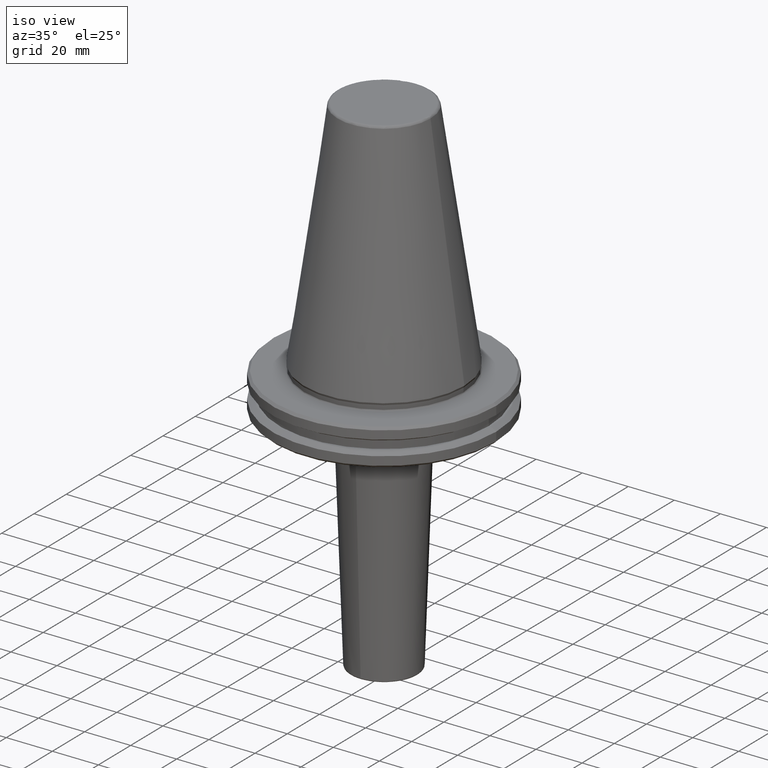
[diagram: clean part render]
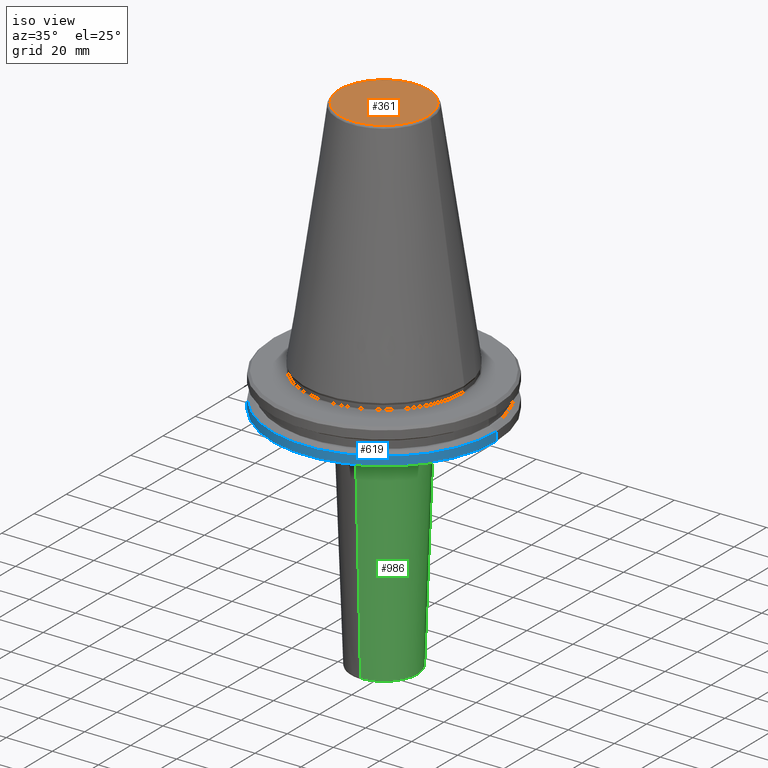
[diagram: same view with three faces highlighted in distinct colors, each labeled with its STEP entity id]
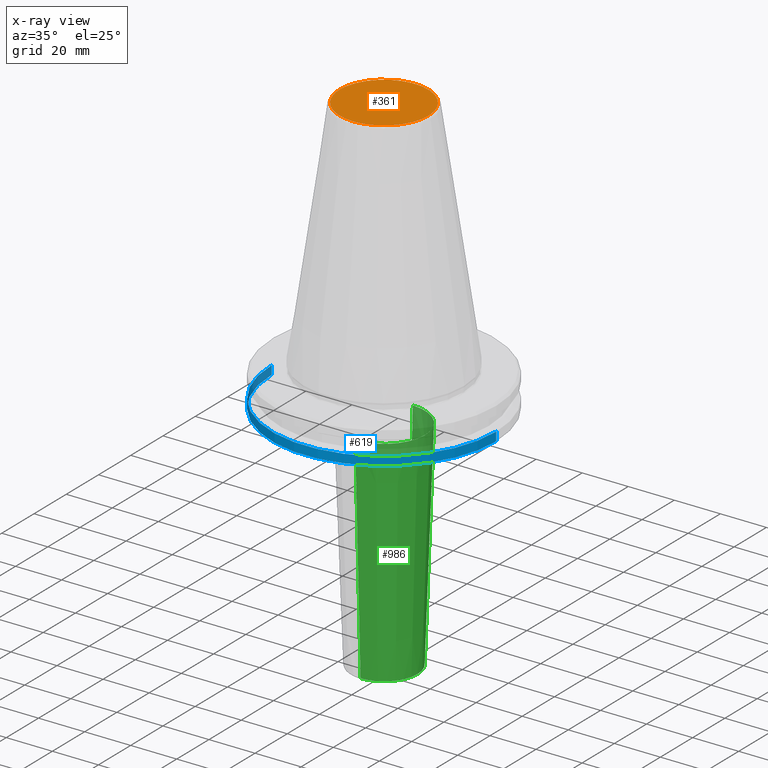
[diagram: x-ray of the same camera — body ghosted, the three highlighted faces saturated]
A machine part, iso view with three faces highlighted in distinct colors.
The next image is the same camera in x-ray (body ghosted, the three faces saturated) — at least one of them is partly hidden behind the body in this view.
Their STEP definitions:

[orange] entity #361 — the highlighted planar face has unit normal (0, 0, 1).
#27 = ORIENTED_EDGE ( 'NONE', *, *, #752, .F. ) ;
#204 = PLANE ( 'NONE',  #281 ) ;
#278 = VERTEX_POINT ( 'NONE', #1520 ) ;
#281 = AXIS2_PLACEMENT_3D ( 'NONE', #1187, #1137, #1091 ) ;
#361 = ADVANCED_FACE ( 'NONE', ( #865 ), #204, .T. ) ;
#393 = ORIENTED_EDGE ( 'NONE', *, *, #491, .F. ) ;
#415 = CARTESIAN_POINT ( 'NONE',  ( 19.22157500054540000, 0.0000000000000000000, 101.7499999999999900 ) ) ;
#420 = CARTESIAN_POINT ( 'NONE',  ( -19.22157500054540000, 2.378200593091452200E-015, 101.7499999999999900 ) ) ;
#423 = CARTESIAN_POINT ( 'NONE',  ( -19.22157500054540000, -38.44315000109079300, 101.7500000000000000 ) ) ;
#442 = CARTESIAN_POINT ( 'NONE',  ( 19.22157500054540000, 0.0000000000000000000, 101.7499999999999900 ) ) ;
#444 = CARTESIAN_POINT ( 'NONE',  ( 19.22157500054540000, -38.44315000109079300, 101.7500000000000000 ) ) ;
#491 = EDGE_CURVE ( 'NONE', #1270, #278, #967, .T. ) ;
#752 = EDGE_CURVE ( 'NONE', #278, #1270, #1209, .T. ) ;
#804 = CARTESIAN_POINT ( 'NONE',  ( 19.22157500054540000, 38.44315000109079300, 101.7500000000000000 ) ) ;
#852 = CARTESIAN_POINT ( 'NONE',  ( 19.22157500054540000, 0.0000000000000000000, 101.7499999999999900 ) ) ;
#865 = FACE_OUTER_BOUND ( 'NONE', #1147, .T. ) ;
#967 =( BOUNDED_CURVE ( )  B_SPLINE_CURVE ( 3, ( #442, #444, #423, #420 ),
 .UNSPECIFIED., .F., .F. ) 
 B_SPLINE_CURVE_WITH_KNOTS ( ( 4, 4 ),
 ( 0.0000000000000000000, 1.000000000000000000 ),
 .UNSPECIFIED. ) 
 CURVE ( )  GEOMETRIC_REPRESENTATION_ITEM ( )  RATIONAL_B_SPLINE_CURVE ( ( 1.000000000000000000, 0.3333333333333333700, 0.3333333333333333700, 1.000000000000000000 ) ) 
 REPRESENTATION_ITEM ( '' )  );
#1091 = DIRECTION ( 'NONE',  ( 1.000000000000000000, 0.0000000000000000000, -0.0000000000000000000 ) ) ;
#1093 = CARTESIAN_POINT ( 'NONE',  ( -19.22157500054539600, 38.44315000109079300, 101.7500000000000000 ) ) ;
#1137 = DIRECTION ( 'NONE',  ( 0.0000000000000000000, 0.0000000000000000000, 1.000000000000000000 ) ) ;
#1147 = EDGE_LOOP ( 'NONE', ( #27, #393 ) ) ;
#1187 = CARTESIAN_POINT ( 'NONE',  ( 0.0000000000000000000, 7.346249770921763000E-014, 101.7500000000000000 ) ) ;
#1209 =( BOUNDED_CURVE ( )  B_SPLINE_CURVE ( 3, ( #1323, #1093, #804, #852 ),
 .UNSPECIFIED., .F., .F. ) 
 B_SPLINE_CURVE_WITH_KNOTS ( ( 4, 4 ),
 ( 0.0000000000000000000, 1.000000000000000000 ),
 .UNSPECIFIED. ) 
 CURVE ( )  GEOMETRIC_REPRESENTATION_ITEM ( )  RATIONAL_B_SPLINE_CURVE ( ( 1.000000000000000000, 0.3333333333333333700, 0.3333333333333333700, 1.000000000000000000 ) ) 
 REPRESENTATION_ITEM ( '' )  );
#1270 = VERTEX_POINT ( 'NONE', #415 ) ;
#1323 = CARTESIAN_POINT ( 'NONE',  ( -19.22157500054540000, 2.378200593091452200E-015, 101.7499999999999900 ) ) ;
#1520 = CARTESIAN_POINT ( 'NONE',  ( -19.22157500054540000, 2.378200593091452200E-015, 101.7499999999999900 ) ) ;

[blue] entity #619 — the highlighted cylindrical surface (partial cylindrical patch) has radius 48.75 mm, axis along (0, 0, 1).
#14 = CARTESIAN_POINT ( 'NONE',  ( -48.75000000000040500, 5.970153145843396100E-015, -18.09999999999950400 ) ) ;
#52 = VERTEX_POINT ( 'NONE', #1083 ) ;
#54 = CARTESIAN_POINT ( 'NONE',  ( 48.75000000000040500, 0.0000000000000000000, -18.09999999999950400 ) ) ;
#85 = EDGE_CURVE ( 'NONE', #259, #239, #1263, .T. ) ;
#88 = CARTESIAN_POINT ( 'NONE',  ( 48.75000000000000000, 0.0000000000000000000, 113.5216080541959500 ) ) ;
#215 = EDGE_LOOP ( 'NONE', ( #900, #237, #869, #1043 ) ) ;
#237 = ORIENTED_EDGE ( 'NONE', *, *, #85, .T. ) ;
#239 = VERTEX_POINT ( 'NONE', #54 ) ;
#241 = CARTESIAN_POINT ( 'NONE',  ( 48.75000000000000700, 5.970153145843347900E-015, -14.34759526419166200 ) ) ;
#259 = VERTEX_POINT ( 'NONE', #14 ) ;
#263 = AXIS2_PLACEMENT_3D ( 'NONE', #1274, #1267, #1036 ) ;
#275 = DIRECTION ( 'NONE',  ( 1.000000000000000000, 0.0000000000000000000, 0.0000000000000000000 ) ) ;
#277 = CARTESIAN_POINT ( 'NONE',  ( 0.0000000000000000000, 0.0000000000000000000, 113.5216080541959500 ) ) ;
#287 = DIRECTION ( 'NONE',  ( 0.0000000000000000000, 0.0000000000000000000, 1.000000000000000000 ) ) ;
#371 = LINE ( 'NONE', #88, #1224 ) ;
#450 = DIRECTION ( 'NONE',  ( 0.0000000000000000000, 0.0000000000000000000, 1.000000000000000000 ) ) ;
#545 = DIRECTION ( 'NONE',  ( 1.000000000000000000, 0.0000000000000000000, 0.0000000000000000000 ) ) ;
#619 = ADVANCED_FACE ( 'NONE', ( #824 ), #1556, .T. ) ;
#659 = VERTEX_POINT ( 'NONE', #241 ) ;
#738 = DIRECTION ( 'NONE',  ( -0.0000000000000000000, -0.0000000000000000000, 1.000000000000000000 ) ) ;
#768 = EDGE_CURVE ( 'NONE', #52, #659, #1198, .T. ) ;
#824 = FACE_OUTER_BOUND ( 'NONE', #215, .T. ) ;
#837 = EDGE_CURVE ( 'NONE', #259, #52, #851, .T. ) ;
#851 = LINE ( 'NONE', #1382, #1449 ) ;
#869 = ORIENTED_EDGE ( 'NONE', *, *, #1103, .T. ) ;
#900 = ORIENTED_EDGE ( 'NONE', *, *, #837, .F. ) ;
#929 = DIRECTION ( 'NONE',  ( 0.0000000000000000000, 0.0000000000000000000, 1.000000000000000000 ) ) ;
#1036 = DIRECTION ( 'NONE',  ( -1.000000000000000000, 0.0000000000000000000, 0.0000000000000000000 ) ) ;
#1043 = ORIENTED_EDGE ( 'NONE', *, *, #768, .F. ) ;
#1083 = CARTESIAN_POINT ( 'NONE',  ( -48.75000000000000700, 0.0000000000000000000, -14.34759526419166200 ) ) ;
#1103 = EDGE_CURVE ( 'NONE', #239, #659, #371, .T. ) ;
#1188 = CARTESIAN_POINT ( 'NONE',  ( 0.0000000000000000000, 0.0000000000000000000, -18.09999999999950400 ) ) ;
#1198 = CIRCLE ( 'NONE', #263, 48.75000000000000000 ) ;
#1224 = VECTOR ( 'NONE', #450, 1000.000000000000000 ) ;
#1263 = CIRCLE ( 'NONE', #1456, 48.75000000000040500 ) ;
#1267 = DIRECTION ( 'NONE',  ( -0.0000000000000000000, -0.0000000000000000000, 1.000000000000000000 ) ) ;
#1274 = CARTESIAN_POINT ( 'NONE',  ( 0.0000000000000000000, 0.0000000000000000000, -14.34759526419166200 ) ) ;
#1288 = AXIS2_PLACEMENT_3D ( 'NONE', #277, #287, #275 ) ;
#1382 = CARTESIAN_POINT ( 'NONE',  ( -48.75000000000000000, 5.970153145843347100E-015, 113.5216080541959500 ) ) ;
#1449 = VECTOR ( 'NONE', #929, 1000.000000000000000 ) ;
#1456 = AXIS2_PLACEMENT_3D ( 'NONE', #1188, #738, #545 ) ;
#1556 = CYLINDRICAL_SURFACE ( 'NONE', #1288, 48.75000000000000000 ) ;

[green] entity #986 — the highlighted conical surface has half-angle 2.005 deg.
#8 = CARTESIAN_POINT ( 'NONE',  ( 14.51688787481192800, 1.777806026946944900E-015, -118.6174892910878400 ) ) ;
#46 = CIRCLE ( 'NONE', #1379, 14.51688787481192800 ) ;
#56 = CARTESIAN_POINT ( 'NONE',  ( 1.980744291789676800E-015, 14.51688787481192800, -118.6174892910878400 ) ) ;
#72 = CARTESIAN_POINT ( 'NONE',  ( 2.183682556632408800E-015, 17.83112125188073400, -23.92510708912191600 ) ) ;
#80 = CARTESIAN_POINT ( 'NONE',  ( 0.0000000000000000000, -17.83112125188073400, -23.92510708912191600 ) ) ;
#115 = AXIS2_PLACEMENT_3D ( 'NONE', #1286, #1374, #270 ) ;
#134 = VERTEX_POINT ( 'NONE', #80 ) ;
#175 = CONICAL_SURFACE ( 'NONE', #1315, 17.83112125188073400, 0.03498571882852573300 ) ;
#185 = LINE ( 'NONE', #1310, #671 ) ;
#186 = VERTEX_POINT ( 'NONE', #56 ) ;
#211 = ORIENTED_EDGE ( 'NONE', *, *, #1539, .T. ) ;
#219 = DIRECTION ( 'NONE',  ( 0.0000000000000000000, -9.728628118626234700E-017, 1.000000000000000000 ) ) ;
#257 = VECTOR ( 'NONE', #262, 1000.000000000000000 ) ;
#262 = DIRECTION ( 'NONE',  ( 0.0000000000000000000, -0.03497858217561870800, 0.9993880621605321100 ) ) ;
#270 = DIRECTION ( 'NONE',  ( -1.000000000000000000, 0.0000000000000000000, 0.0000000000000000000 ) ) ;
#298 = EDGE_CURVE ( 'NONE', #1367, #186, #406, .T. ) ;
#348 = CIRCLE ( 'NONE', #115, 17.83112125188073400 ) ;
#373 = CARTESIAN_POINT ( 'NONE',  ( 0.0000000000000000000, 0.0000000000000000000, -118.6174892910878400 ) ) ;
#376 = AXIS2_PLACEMENT_3D ( 'NONE', #373, #745, #1419 ) ;
#406 = CIRCLE ( 'NONE', #376, 14.51688787481192800 ) ;
#437 = EDGE_CURVE ( 'NONE', #1063, #1367, #46, .T. ) ;
#493 = CARTESIAN_POINT ( 'NONE',  ( 0.0000000000000000000, -14.51688787481193000, -118.6174892910878400 ) ) ;
#500 = DIRECTION ( 'NONE',  ( 1.000000000000000000, 0.0000000000000000000, -9.559754079173975900E-016 ) ) ;
#507 = DIRECTION ( 'NONE',  ( 0.0000000000000000000, 0.0000000000000000000, 1.000000000000000000 ) ) ;
#527 = CARTESIAN_POINT ( 'NONE',  ( 0.0000000000000000000, 0.0000000000000000000, -118.6174892910878400 ) ) ;
#564 = DIRECTION ( 'NONE',  ( 4.283640870008398600E-018, 0.03497858217561850700, 0.9993880621605322200 ) ) ;
#570 = DIRECTION ( 'NONE',  ( -1.000000000000000000, 0.0000000000000000000, 0.0000000000000000000 ) ) ;
#581 = DIRECTION ( 'NONE',  ( 0.0000000000000000000, 0.0000000000000000000, -1.000000000000000000 ) ) ;
#646 = CARTESIAN_POINT ( 'NONE',  ( 0.0000000000000000000, 0.0000000000000000000, -23.92510708912191600 ) ) ;
#671 = VECTOR ( 'NONE', #564, 999.9999999999998900 ) ;
#694 = ORIENTED_EDGE ( 'NONE', *, *, #990, .F. ) ;
#716 = DIRECTION ( 'NONE',  ( 0.0000000000000000000, -1.000000000000000000, -1.945725623725246700E-016 ) ) ;
#745 = DIRECTION ( 'NONE',  ( 0.0000000000000000000, 0.0000000000000000000, 1.000000000000000000 ) ) ;
#777 = VERTEX_POINT ( 'NONE', #1006 ) ;
#788 = CARTESIAN_POINT ( 'NONE',  ( 0.0000000000000000000, 0.0000000000000000000, -23.92510708912192600 ) ) ;
#807 = AXIS2_PLACEMENT_3D ( 'NONE', #646, #581, #570 ) ;
#856 = ORIENTED_EDGE ( 'NONE', *, *, #298, .T. ) ;
#887 = CARTESIAN_POINT ( 'NONE',  ( 0.0000000000000000000, -17.83112125188073400, -23.92510708912193000 ) ) ;
#895 = FACE_OUTER_BOUND ( 'NONE', #1423, .T. ) ;
#986 = ADVANCED_FACE ( 'NONE', ( #895 ), #175, .T. ) ;
#990 = EDGE_CURVE ( 'NONE', #1063, #134, #1304, .T. ) ;
#1006 = CARTESIAN_POINT ( 'NONE',  ( 17.83112125188073400, 2.489656904490151400E-015, -23.92510708912191600 ) ) ;
#1063 = VERTEX_POINT ( 'NONE', #493 ) ;
#1096 = CIRCLE ( 'NONE', #807, 17.83112125188073400 ) ;
#1117 = VERTEX_POINT ( 'NONE', #72 ) ;
#1120 = ORIENTED_EDGE ( 'NONE', *, *, #437, .T. ) ;
#1153 = EDGE_CURVE ( 'NONE', #186, #1117, #185, .T. ) ;
#1235 = ORIENTED_EDGE ( 'NONE', *, *, #1242, .T. ) ;
#1242 = EDGE_CURVE ( 'NONE', #1117, #777, #1096, .T. ) ;
#1254 = ORIENTED_EDGE ( 'NONE', *, *, #1153, .T. ) ;
#1286 = CARTESIAN_POINT ( 'NONE',  ( 0.0000000000000000000, 0.0000000000000000000, -23.92510708912191600 ) ) ;
#1304 = LINE ( 'NONE', #887, #257 ) ;
#1310 = CARTESIAN_POINT ( 'NONE',  ( 2.183682556632408800E-015, 17.83112125188073400, -23.92510708912192300 ) ) ;
#1315 = AXIS2_PLACEMENT_3D ( 'NONE', #788, #219, #716 ) ;
#1367 = VERTEX_POINT ( 'NONE', #8 ) ;
#1374 = DIRECTION ( 'NONE',  ( 0.0000000000000000000, 0.0000000000000000000, -1.000000000000000000 ) ) ;
#1379 = AXIS2_PLACEMENT_3D ( 'NONE', #527, #507, #500 ) ;
#1419 = DIRECTION ( 'NONE',  ( 1.000000000000000000, 0.0000000000000000000, -9.559754079173975900E-016 ) ) ;
#1423 = EDGE_LOOP ( 'NONE', ( #1120, #856, #1254, #1235, #211, #694 ) ) ;
#1539 = EDGE_CURVE ( 'NONE', #777, #134, #348, .T. ) ;